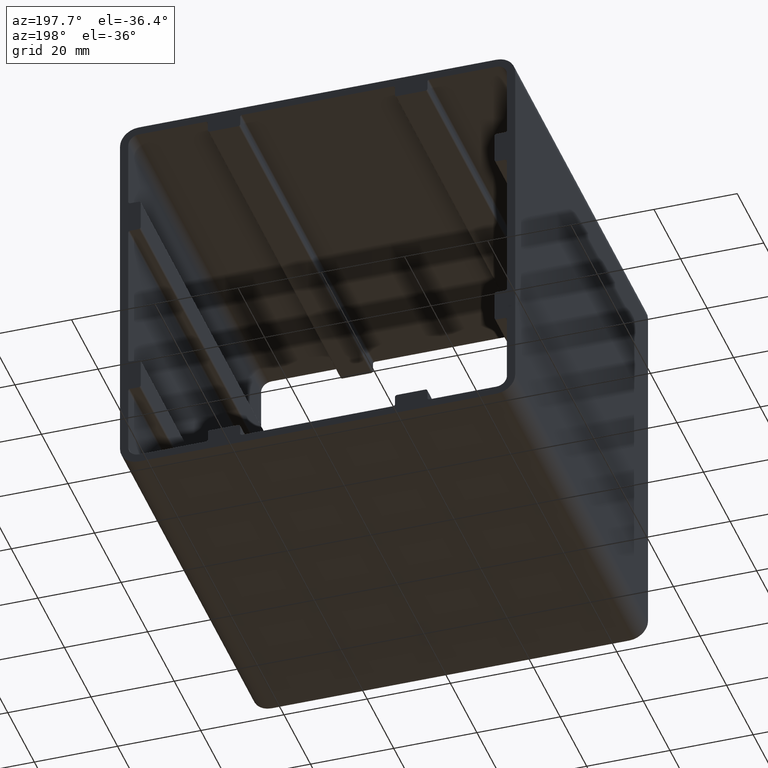
[diagram: clean part render]
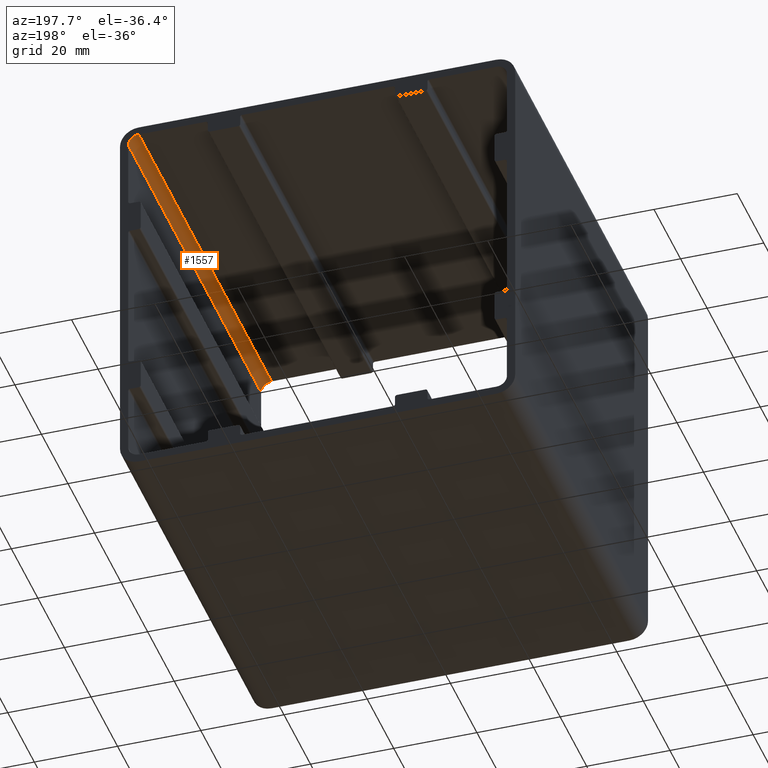
[diagram: same view with one face highlighted and labeled with its STEP entity id]
A machine part, auxiliary view. The second image highlights one B-rep face of the part: STEP entity #1557.
In plain terms, the highlighted cylindrical surface (edge-blend (fillet) strip) has radius 2.5 mm, axis along (0, -1, 0).
Its self-contained STEP definition (entity closure, byte-faithful):
#71=FACE_OUTER_BOUND('',#155,.T.);
#155=EDGE_LOOP('',(#1225,#1226,#1227,#1228));
#319=LINE('',#2643,#479);
#320=LINE('',#2644,#480);
#479=VECTOR('',#2091,10.);
#480=VECTOR('',#2092,10.);
#556=CIRCLE('',#1661,2.5);
#619=CIRCLE('',#1729,2.5);
#648=VERTEX_POINT('',#2346);
#649=VERTEX_POINT('',#2348);
#773=VERTEX_POINT('',#2607);
#774=VERTEX_POINT('',#2609);
#810=EDGE_CURVE('',#649,#648,#556,.T.);
#941=EDGE_CURVE('',#774,#773,#619,.T.);
#959=EDGE_CURVE('',#773,#649,#319,.T.);
#960=EDGE_CURVE('',#648,#774,#320,.T.);
#1225=ORIENTED_EDGE('',*,*,#941,.T.);
#1226=ORIENTED_EDGE('',*,*,#959,.T.);
#1227=ORIENTED_EDGE('',*,*,#810,.T.);
#1228=ORIENTED_EDGE('',*,*,#960,.T.);
#1511=CYLINDRICAL_SURFACE('',#1739,2.5);
#1557=ADVANCED_FACE('',(#71),#1511,.F.);
#1661=AXIS2_PLACEMENT_3D('',#2349,#1853,#1854);
#1729=AXIS2_PLACEMENT_3D('',#2610,#2057,#2058);
#1739=AXIS2_PLACEMENT_3D('',#2642,#2089,#2090);
#1853=DIRECTION('center_axis',(0.,-1.,0.));
#1854=DIRECTION('ref_axis',(0.70710678118655,0.,0.707106781186545));
#2057=DIRECTION('center_axis',(0.,1.,0.));
#2058=DIRECTION('ref_axis',(0.70710678118655,0.,0.707106781186545));
#2089=DIRECTION('center_axis',(0.,-1.,0.));
#2090=DIRECTION('ref_axis',(0.70710678118655,0.,0.707106781186545));
#2091=DIRECTION('',(0.,-1.,0.));
#2092=DIRECTION('',(0.,1.,0.));
#2346=CARTESIAN_POINT('',(43.,0.,45.5));
#2348=CARTESIAN_POINT('',(45.5,0.,43.));
#2349=CARTESIAN_POINT('Origin',(43.,0.,43.));
#2607=CARTESIAN_POINT('',(45.5,100.,43.));
#2609=CARTESIAN_POINT('',(43.,100.,45.5));
#2610=CARTESIAN_POINT('Origin',(43.,100.,43.));
#2642=CARTESIAN_POINT('Origin',(43.,100.,43.));
#2643=CARTESIAN_POINT('',(45.5,100.,43.));
#2644=CARTESIAN_POINT('',(43.,100.,45.5));